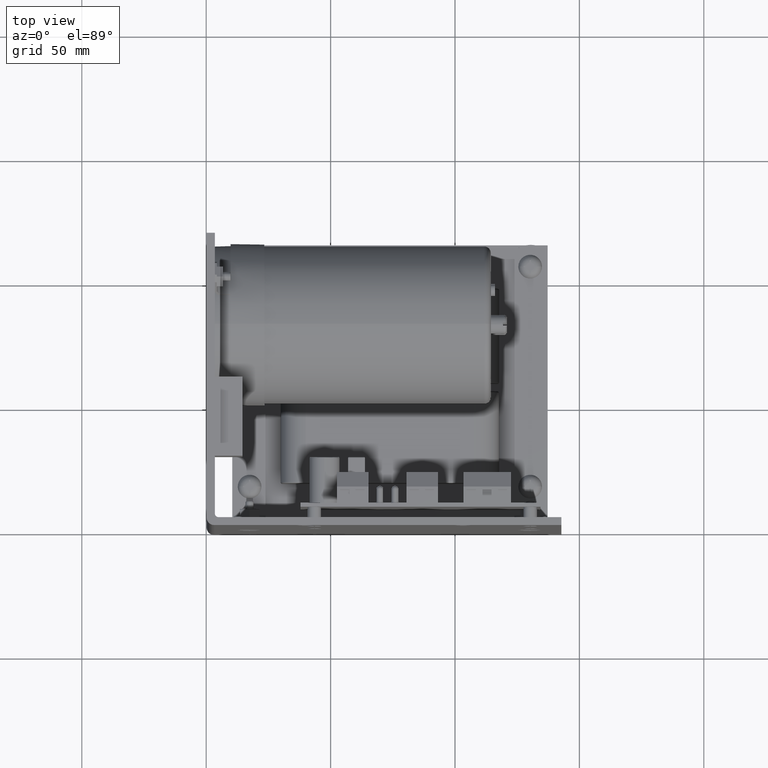
[diagram: clean part render]
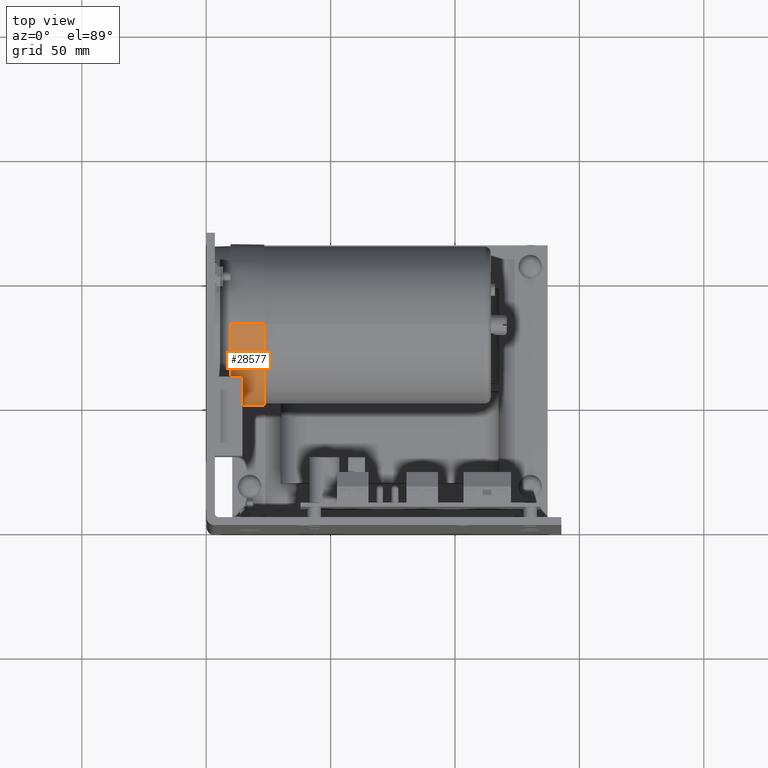
[diagram: same view with one face highlighted and labeled with its STEP entity id]
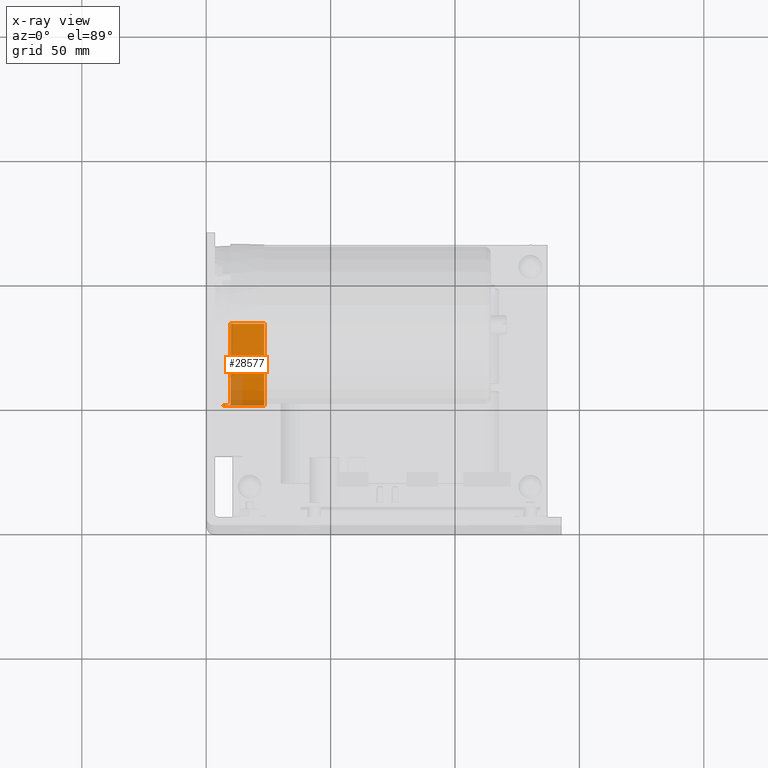
[diagram: x-ray of the same camera — body ghosted, the highlighted face saturated]
A machine part, top view. The second image highlights one B-rep face of the part: STEP entity #28577.
The next image is the same camera in x-ray: the body ghosted, the highlighted face saturated — about 13% of this face is hidden behind the body in this view.
In plain terms, the highlighted cylindrical surface (partial cylindrical patch) has radius 32.5438 mm, axis along (-1, -0, -0).
Its self-contained STEP definition (entity closure, byte-faithful):
#69 = AXIS2_PLACEMENT_3D ( 'NONE', #29952, #2117, #11205 ) ;
#208 = VERTEX_POINT ( 'NONE', #13381 ) ;
#1604 = AXIS2_PLACEMENT_3D ( 'NONE', #25965, #11898, #23651 ) ;
#1700 = EDGE_CURVE ( 'NONE', #23711, #7504, #9282, .T. ) ;
#1795 = CARTESIAN_POINT ( 'NONE',  ( 0.3868205299999754000, 3.205000000000432600, 1.754671937559041400 ) ) ;
#2117 = DIRECTION ( 'NONE',  ( 1.000000000000000000, -0.0000000000000000000, 0.0000000000000000000 ) ) ;
#2280 = CARTESIAN_POINT ( 'NONE',  ( 0.6680705299999752900, 1.937543763083174900, 1.942171937558771200 ) ) ;
#3460 = CARTESIAN_POINT ( 'NONE',  ( 0.6680705299999752900, 3.205000000000432600, 1.754671937559041400 ) ) ;
#4110 = ORIENTED_EDGE ( 'NONE', *, *, #10489, .T. ) ;
#4233 = CIRCLE ( 'NONE', #25759, 1.281250000000138100 ) ;
#4892 = VECTOR ( 'NONE', #12437, 39.37007874015748100 ) ;
#5581 = CIRCLE ( 'NONE', #69, 1.281250000000138100 ) ;
#6066 = VERTEX_POINT ( 'NONE', #24821 ) ;
#6068 = VERTEX_POINT ( 'NONE', #8462 ) ;
#6082 = AXIS2_PLACEMENT_3D ( 'NONE', #3460, #8247, #22376 ) ;
#6335 = CARTESIAN_POINT ( 'NONE',  ( 0.3868205299999754000, 1.937543763083166700, 1.567171937559369100 ) ) ;
#6542 = CIRCLE ( 'NONE', #1604, 1.281250000000138100 ) ;
#6659 = EDGE_CURVE ( 'NONE', #7958, #23711, #5581, .T. ) ;
#6778 = EDGE_LOOP ( 'NONE', ( #16951, #27202, #4110, #28343, #23127, #16853, #12603, #29151 ) ) ;
#7504 = VERTEX_POINT ( 'NONE', #22296 ) ;
#7694 = LINE ( 'NONE', #24962, #25505 ) ;
#7958 = VERTEX_POINT ( 'NONE', #28623 ) ;
#7976 = CIRCLE ( 'NONE', #25188, 1.281250000000138100 ) ;
#8243 = FACE_OUTER_BOUND ( 'NONE', #6778, .T. ) ;
#8247 = DIRECTION ( 'NONE',  ( -1.000000000000000000, -0.0000000000000000000, -0.0000000000000000000 ) ) ;
#8462 = CARTESIAN_POINT ( 'NONE',  ( 0.3868205299999754000, 1.937543763083175100, 1.942171937558771200 ) ) ;
#9282 = LINE ( 'NONE', #12241, #4892 ) ;
#9416 = VERTEX_POINT ( 'NONE', #6335 ) ;
#9473 = LINE ( 'NONE', #18445, #15634 ) ;
#10397 = CARTESIAN_POINT ( 'NONE',  ( 0.9180705299999754000, 3.205000000000432600, 0.4734219375589032700 ) ) ;
#10489 = EDGE_CURVE ( 'NONE', #7958, #11032, #9473, .T. ) ;
#11032 = VERTEX_POINT ( 'NONE', #22765 ) ;
#11205 = DIRECTION ( 'NONE',  ( 0.0000000000000000000, 0.0000000000000000000, -1.000000000000000000 ) ) ;
#11427 = DIRECTION ( 'NONE',  ( 0.0000000000000000000, 0.0000000000000000000, -1.000000000000000000 ) ) ;
#11681 = EDGE_CURVE ( 'NONE', #6068, #208, #28651, .T. ) ;
#11898 = DIRECTION ( 'NONE',  ( 1.000000000000000000, -0.0000000000000000000, 0.0000000000000000000 ) ) ;
#12241 = CARTESIAN_POINT ( 'NONE',  ( 0.6680705299999752900, 3.205000000000432600, 0.4734219375589032700 ) ) ;
#12437 = DIRECTION ( 'NONE',  ( -1.000000000000000000, -0.0000000000000000000, -0.0000000000000000000 ) ) ;
#12603 = ORIENTED_EDGE ( 'NONE', *, *, #26597, .F. ) ;
#12610 = EDGE_CURVE ( 'NONE', #9416, #7504, #7976, .T. ) ;
#13381 = CARTESIAN_POINT ( 'NONE',  ( 0.2680705299999753800, 1.937543763083174900, 1.942171937558771200 ) ) ;
#13617 = CARTESIAN_POINT ( 'NONE',  ( 0.3868205299999754000, 3.205000000000432600, 1.754671937559041400 ) ) ;
#13726 = DIRECTION ( 'NONE',  ( -1.000000000000000000, -0.0000000000000000000, -0.0000000000000000000 ) ) ;
#15424 = DIRECTION ( 'NONE',  ( 0.0000000000000000000, 0.0000000000000000000, -1.000000000000000000 ) ) ;
#15634 = VECTOR ( 'NONE', #13726, 39.37007874015748100 ) ;
#16853 = ORIENTED_EDGE ( 'NONE', *, *, #30157, .T. ) ;
#16951 = ORIENTED_EDGE ( 'NONE', *, *, #1700, .F. ) ;
#17691 = CYLINDRICAL_SURFACE ( 'NONE', #6082, 1.281250000000138300 ) ;
#18323 = DIRECTION ( 'NONE',  ( 1.000000000000000000, -0.0000000000000000000, 0.0000000000000000000 ) ) ;
#18445 = CARTESIAN_POINT ( 'NONE',  ( 0.6680705299999752900, 3.205000000000432600, 3.035921937559179700 ) ) ;
#18858 = DIRECTION ( 'NONE',  ( -1.000000000000000000, -0.0000000000000000000, -0.0000000000000000000 ) ) ;
#21788 = VECTOR ( 'NONE', #18858, 39.37007874015748100 ) ;
#22296 = CARTESIAN_POINT ( 'NONE',  ( 0.3868205299999754000, 3.205000000000432600, 0.4734219375589032700 ) ) ;
#22376 = DIRECTION ( 'NONE',  ( 0.0000000000000000000, 0.0000000000000000000, 1.000000000000000000 ) ) ;
#22765 = CARTESIAN_POINT ( 'NONE',  ( 0.3868205299999754000, 3.205000000000432600, 3.035921937559179700 ) ) ;
#23037 = DIRECTION ( 'NONE',  ( -1.000000000000000000, -0.0000000000000000000, -0.0000000000000000000 ) ) ;
#23127 = ORIENTED_EDGE ( 'NONE', *, *, #11681, .T. ) ;
#23651 = DIRECTION ( 'NONE',  ( 0.0000000000000000000, 0.0000000000000000000, -1.000000000000000000 ) ) ;
#23711 = VERTEX_POINT ( 'NONE', #10397 ) ;
#24791 = EDGE_CURVE ( 'NONE', #11032, #6068, #4233, .T. ) ;
#24821 = CARTESIAN_POINT ( 'NONE',  ( 0.2680705299999753800, 1.937543763083166400, 1.567171937559369100 ) ) ;
#24962 = CARTESIAN_POINT ( 'NONE',  ( 0.6680705299999752900, 1.937543763083166400, 1.567171937559369100 ) ) ;
#25083 = DIRECTION ( 'NONE',  ( 1.000000000000000000, -0.0000000000000000000, 0.0000000000000000000 ) ) ;
#25188 = AXIS2_PLACEMENT_3D ( 'NONE', #1795, #25083, #15424 ) ;
#25505 = VECTOR ( 'NONE', #23037, 39.37007874015748100 ) ;
#25759 = AXIS2_PLACEMENT_3D ( 'NONE', #13617, #18323, #11427 ) ;
#25965 = CARTESIAN_POINT ( 'NONE',  ( 0.2680705299999753800, 3.205000000000432600, 1.754671937559041400 ) ) ;
#26597 = EDGE_CURVE ( 'NONE', #9416, #6066, #7694, .T. ) ;
#27202 = ORIENTED_EDGE ( 'NONE', *, *, #6659, .F. ) ;
#28343 = ORIENTED_EDGE ( 'NONE', *, *, #24791, .T. ) ;
#28577 = ADVANCED_FACE ( 'NONE', ( #8243 ), #17691, .T. ) ;
#28623 = CARTESIAN_POINT ( 'NONE',  ( 0.9180705299999754000, 3.205000000000432600, 3.035921937559179700 ) ) ;
#28651 = LINE ( 'NONE', #2280, #21788 ) ;
#29151 = ORIENTED_EDGE ( 'NONE', *, *, #12610, .T. ) ;
#29952 = CARTESIAN_POINT ( 'NONE',  ( 0.9180705299999754000, 3.205000000000432600, 1.754671937559041400 ) ) ;
#30157 = EDGE_CURVE ( 'NONE', #208, #6066, #6542, .T. ) ;